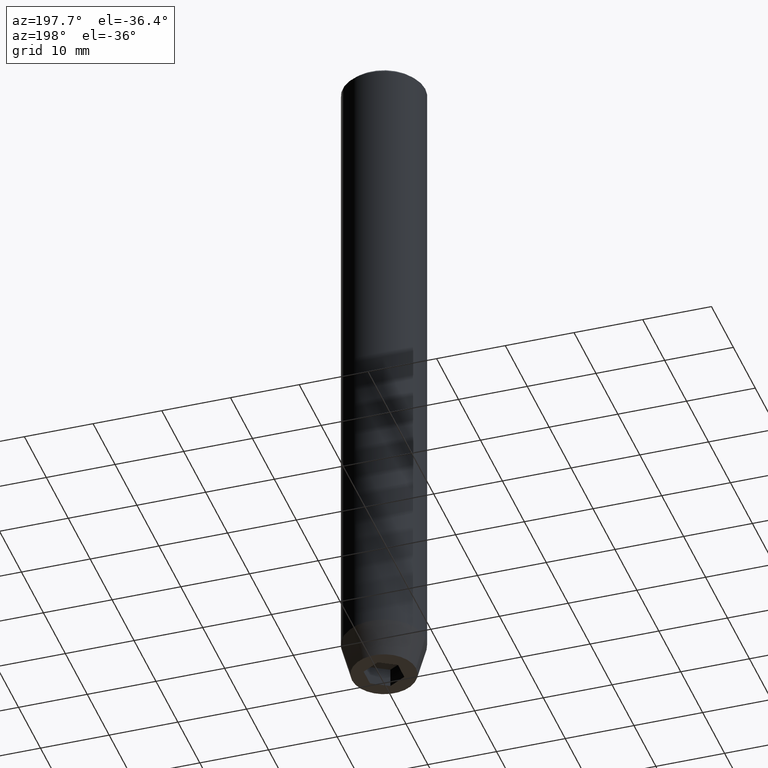
[diagram: clean part render]
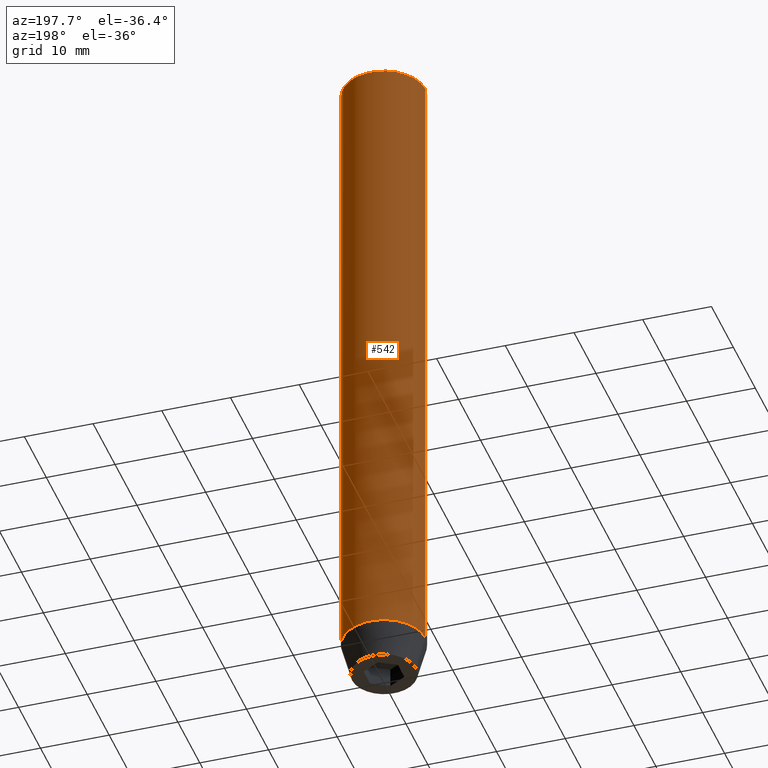
[diagram: same view with one face highlighted and labeled with its STEP entity id]
A machine part, auxiliary view. The second image highlights one B-rep face of the part: STEP entity #542.
In plain terms, the highlighted cylindrical surface (partial cylindrical patch) has radius 6 mm, axis along (-0, -0, 1).
Its self-contained STEP definition (entity closure, byte-faithful):
#24 = CIRCLE ( 'NONE', #38, 6.000000000000000000 ) ;
#27 = ORIENTED_EDGE ( 'NONE', *, *, #65, .T. ) ;
#38 = AXIS2_PLACEMENT_3D ( 'NONE', #124, #74, #428 ) ;
#40 = VECTOR ( 'NONE', #56, 1000.000000000000000 ) ;
#41 = ORIENTED_EDGE ( 'NONE', *, *, #515, .T. ) ;
#51 = ORIENTED_EDGE ( 'NONE', *, *, #418, .T. ) ;
#56 = DIRECTION ( 'NONE',  ( -0.000000000000000000, -0.000000000000000000, 1.000000000000000000 ) ) ;
#65 = EDGE_CURVE ( 'NONE', #555, #471, #24, .T. ) ;
#69 = FACE_OUTER_BOUND ( 'NONE', #425, .T. ) ;
#74 = DIRECTION ( 'NONE',  ( -0.000000000000000000, -0.000000000000000000, 1.000000000000000000 ) ) ;
#108 = AXIS2_PLACEMENT_3D ( 'NONE', #144, #328, #550 ) ;
#112 = ORIENTED_EDGE ( 'NONE', *, *, #405, .F. ) ;
#124 = CARTESIAN_POINT ( 'NONE',  ( 0.000000000000000000, 0.000000000000000000, -95.00000000000000000 ) ) ;
#136 = AXIS2_PLACEMENT_3D ( 'NONE', #376, #343, #334 ) ;
#144 = CARTESIAN_POINT ( 'NONE',  ( 0.000000000000000000, 0.000000000000000000, -0.5000000000000029976 ) ) ;
#150 = LINE ( 'NONE', #374, #406 ) ;
#164 = CARTESIAN_POINT ( 'NONE',  ( 6.000000000000000000, 0.000000000000000000, -95.00000000000000000 ) ) ;
#239 = CARTESIAN_POINT ( 'NONE',  ( -6.000000000000000000, 7.347880794884119736E-16, -0.5000000000000029976 ) ) ;
#258 = DIRECTION ( 'NONE',  ( -0.000000000000000000, -0.000000000000000000, 1.000000000000000000 ) ) ;
#281 = CARTESIAN_POINT ( 'NONE',  ( -6.000000000000000000, 7.347880794884119736E-16, -95.00000000000000000 ) ) ;
#284 = CARTESIAN_POINT ( 'NONE',  ( 6.000000000000000000, 0.000000000000000000, 0.000000000000000000 ) ) ;
#328 = DIRECTION ( 'NONE',  ( 0.000000000000000000, 0.000000000000000000, -1.000000000000000000 ) ) ;
#330 = VERTEX_POINT ( 'NONE', #239 ) ;
#334 = DIRECTION ( 'NONE',  ( 1.000000000000000000, 0.000000000000000000, 0.000000000000000000 ) ) ;
#343 = DIRECTION ( 'NONE',  ( -0.000000000000000000, -0.000000000000000000, 1.000000000000000000 ) ) ;
#349 = CIRCLE ( 'NONE', #108, 6.000000000000000000 ) ;
#374 = CARTESIAN_POINT ( 'NONE',  ( -6.000000000000000000, 7.347880794884119736E-16, 0.000000000000000000 ) ) ;
#376 = CARTESIAN_POINT ( 'NONE',  ( 0.000000000000000000, 0.000000000000000000, 0.000000000000000000 ) ) ;
#405 = EDGE_CURVE ( 'NONE', #555, #488, #501, .T. ) ;
#406 = VECTOR ( 'NONE', #258, 1000.000000000000000 ) ;
#417 = CARTESIAN_POINT ( 'NONE',  ( 6.000000000000000000, 0.000000000000000000, -0.5000000000000029976 ) ) ;
#418 = EDGE_CURVE ( 'NONE', #330, #488, #349, .T. ) ;
#425 = EDGE_LOOP ( 'NONE', ( #27, #41, #51, #112 ) ) ;
#428 = DIRECTION ( 'NONE',  ( 1.000000000000000000, 0.000000000000000000, 0.000000000000000000 ) ) ;
#471 = VERTEX_POINT ( 'NONE', #281 ) ;
#488 = VERTEX_POINT ( 'NONE', #417 ) ;
#501 = LINE ( 'NONE', #284, #40 ) ;
#515 = EDGE_CURVE ( 'NONE', #471, #330, #150, .T. ) ;
#523 = CYLINDRICAL_SURFACE ( 'NONE', #136, 6.000000000000000000 ) ;
#542 = ADVANCED_FACE ( 'NONE', ( #69 ), #523, .T. ) ;
#550 = DIRECTION ( 'NONE',  ( 1.000000000000000000, 0.000000000000000000, 0.000000000000000000 ) ) ;
#555 = VERTEX_POINT ( 'NONE', #164 ) ;